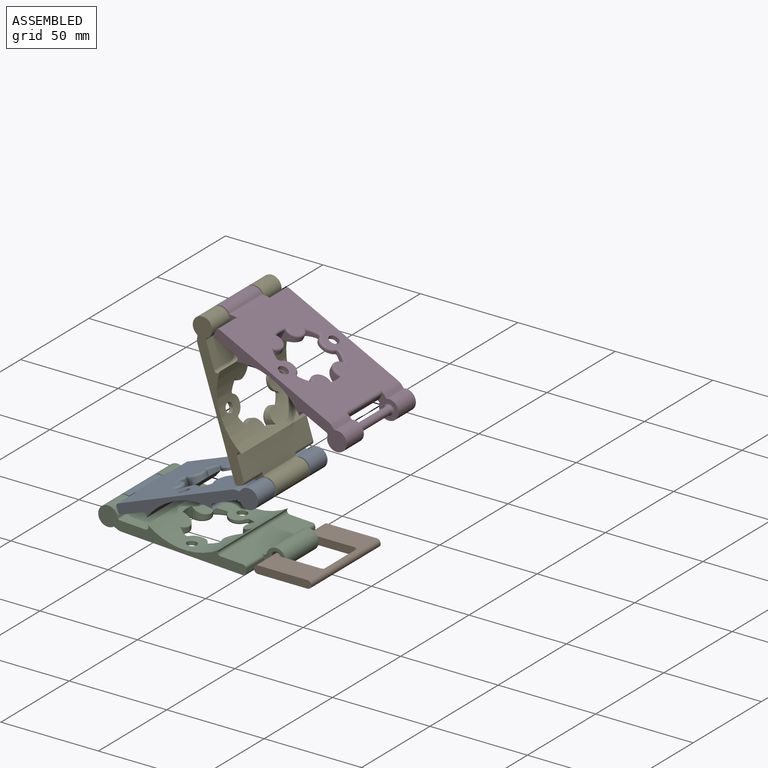
[diagram: assembled view]
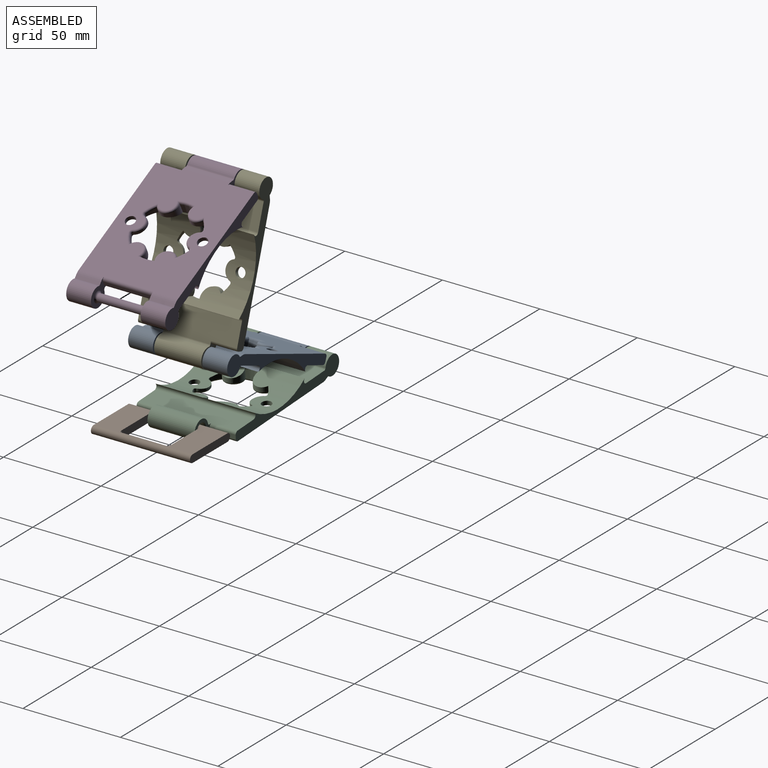
[diagram: assembled view, second angle]
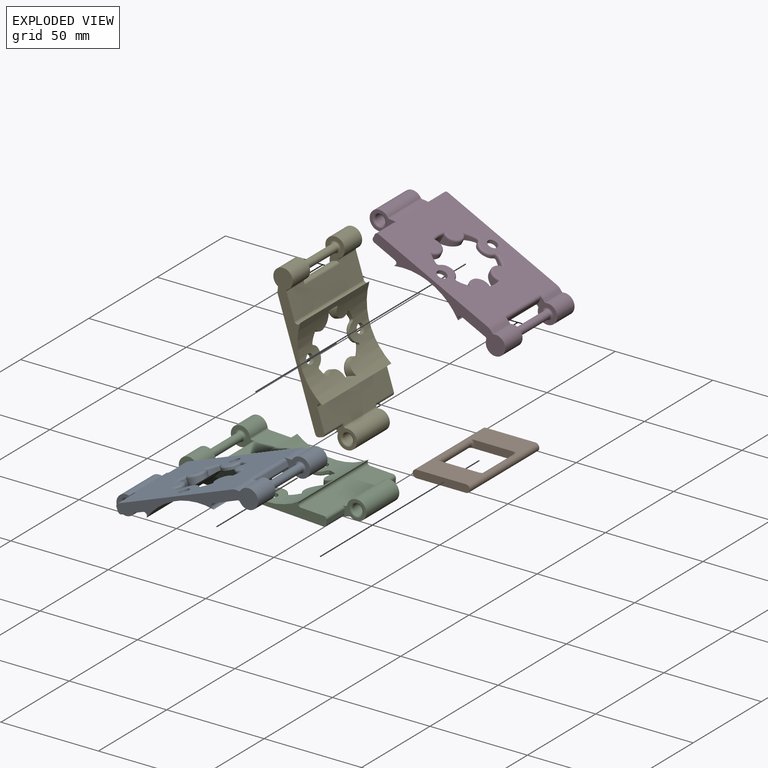
[diagram: exploded view]
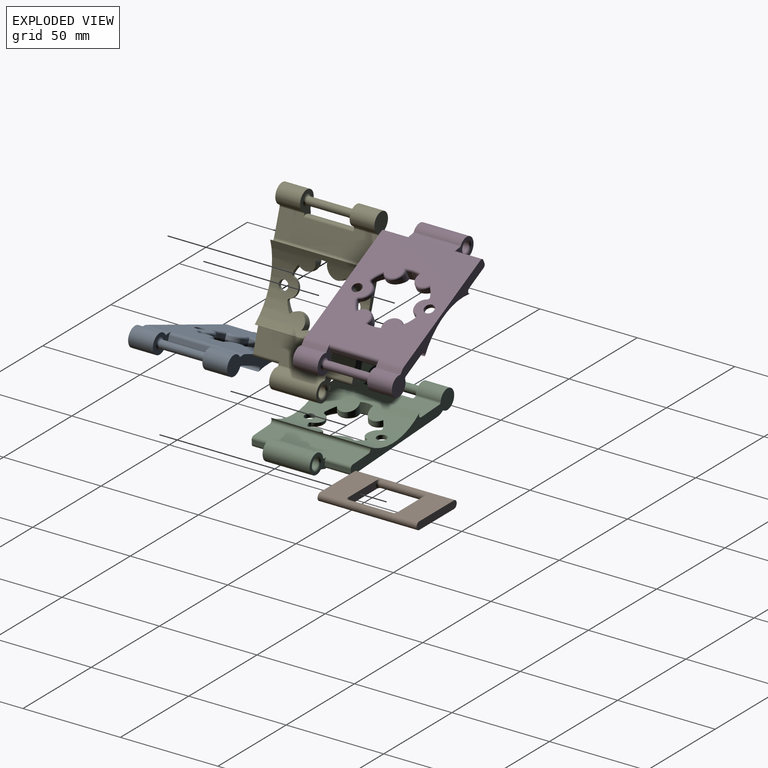
[diagram: exploded view, second angle]
ASSEMBLY  parts=5 mates=4
PART A: 74 faces, bbox 87x50.8x10 mm
  f0: cylinder r=32.5mm len=50.8mm, axis (0,-1,0), area 1361.5mm2, adj f8,f9,f24,f25,f29,f30,f31,f32
  f1: plane 63.73x50.8mm, normal (0,0,-1), area 2446.5mm2, adj f8,f9,f12,f13,f19,f20,f21,f22
  f2: plane 13.34x2mm, normal (1,0,0), area 26.7mm2, adj f9,f20,f21,f27
  f3: plane 50.8x13.3mm, normal (0,0,1), area 635.2mm2, adj f8,f9,f12,f13,f23,f24,f48,f49
  f4: cylinder r=5mm len=12.7mm, axis (0,1,0), area 334mm2, adj f5,f9,f12,f48
  f5: plane 12.7x1.73mm, normal (-0.41,0,-0.91), area 24.1mm2, adj f4,f9,f12,f66
  f6: plane 13.34x2mm, normal (1,0,0), area 26.7mm2, adj f8,f19,f26,f28
  f7: plane 50.8x13.3mm, normal (0,0,1), area 633.2mm2, adj f8,f9,f19,f20,f25,f27,f28,f45
  f8: plane 76x10mm, normal (0,-1,0), area 365.2mm2, adj f0,f1,f3,f6,f7,f10,f11,f24
  f9: plane 76x10mm, normal (0,1,0), area 365.2mm2, adj f0,f1,f2,f3,f4,f5,f7,f21
  f10: cylinder r=5mm len=12.7mm, axis (0,1,0), area 334mm2, adj f8,f11,f13,f49
  f11: plane 12.7x1.73mm, normal (-0.41,0,-0.91), area 24.1mm2, adj f8,f10,f13,f67
  f12: plane 12.5x10mm, normal (0,-1,0), area 58.7mm2, adj f1,f3,f4,f5,f14,f22,f23,f48
  f13: plane 12.5x10mm, normal (0,1,0), area 58.7mm2, adj f1,f3,f10,f11,f14,f22,f23,f49
  f14: plane 25.4x2mm, normal (-1,0,0), area 50.8mm2, adj f12,f13,f22,f23
  f15: cylinder r=2mm len=23.4mm, axis (0,-1,0), area 294.1mm2, adj f72,f73
  f16: plane 24.13x2.24mm, normal (0.35,0,-0.94), area 57.6mm2, adj f19,f20,f46,f47
  f17: cylinder r=5mm len=24.13mm, axis (0,1,0), area 617.4mm2, adj f19,f20,f45,f47
  f18: cylinder r=2.6mm len=22.13mm, axis (0,1,0), area 361.5mm2, adj f70,f71
  f19: plane 12.5x10mm, normal (0,-1,0), area 46.7mm2, adj f1,f6,f7,f16,f17,f26,f28,f45
  f20: plane 12.5x10mm, normal (0,1,0), area 46.7mm2, adj f1,f2,f7,f16,f17,f21,f27,f45
  f21: cylinder r=1.5mm len=13.34mm, axis (0,-1,0), area 31.4mm2, adj f1,f2,f9,f20
  f22: cylinder r=1.5mm len=25.4mm, axis (0,1,0), area 59.8mm2, adj f1,f12,f13,f14
  f23: cylinder r=1.5mm len=25.4mm, axis (0,-1,0), area 59.8mm2, adj f3,f12,f13,f14
  f24: cylinder r=1.5mm len=50.8mm, axis (0,1,0), area 193.4mm2, adj f0,f3,f8,f9
  f25: cylinder r=1.5mm len=50.8mm, axis (0,1,0), area 193.4mm2, adj f0,f7,f8,f9
  f26: cylinder r=1.5mm len=13.34mm, axis (0,-1,0), area 31.4mm2, adj f1,f6,f8,f19
  f27: cylinder r=1.5mm len=13.34mm, axis (0,1,0), area 31.4mm2, adj f2,f7,f9,f20
  f28: cylinder r=1.5mm len=13.34mm, axis (0,1,0), area 31.4mm2, adj f6,f7,f8,f19
  f29: cylinder r=5mm len=9.44mm, axis (0,0,-1), area 14.1mm2, adj f0,f41,f44,f51
  f30: cylinder r=16mm len=4.66mm, axis (0,0,-1), area 11.9mm2, adj f0,f31,f41,f52
  f31: cylinder r=5mm len=8.96mm, axis (0,0,-1), area 41.9mm2, adj f0,f30,f32,f54
  f32: cylinder r=16mm len=6.63mm, axis (0,0,-1), area 34.4mm2, adj f0,f31,f33,f56
  f33: cylinder r=5mm len=8.96mm, axis (0,0,-1), area 41.9mm2, adj f0,f32,f34,f58
  f34: cylinder r=16mm len=4.66mm, axis (0,0,-1), area 11.9mm2, adj f0,f33,f42,f60
  f35: cylinder r=5mm len=9.44mm, axis (0,0,-1), area 14.1mm2, adj f0,f42,f43,f64
  f36: cylinder r=16mm len=4.66mm, axis (0,0,-1), area 11.9mm2, adj f0,f37,f43,f63
  f37: cylinder r=5mm len=8.96mm, axis (0,0,-1), area 41.9mm2, adj f0,f36,f38,f61
  f38: cylinder r=16mm len=6.63mm, axis (0,0,-1), area 34.4mm2, adj f0,f37,f39,f59
  f39: cylinder r=5mm len=8.96mm, axis (0,0,-1), area 41.9mm2, adj f0,f38,f40,f57
  f40: cylinder r=16mm len=4.66mm, axis (0,0,-1), area 11.9mm2, adj f0,f39,f44,f55
  f41: cylinder r=1mm len=1.57mm, axis (0,0,-1), area 2.4mm2, adj f0,f29,f30,f50
  f42: cylinder r=1mm len=1.57mm, axis (0,0,-1), area 2.4mm2, adj f0,f34,f35,f62
  f43: cylinder r=1mm len=1.57mm, axis (0,0,-1), area 2.4mm2, adj f0,f35,f36,f65
  f44: cylinder r=1mm len=1.57mm, axis (0,0,-1), area 2.4mm2, adj f0,f29,f40,f53
  f45: cylinder r=1mm len=24.13mm, axis (0,1,0), area 33.9mm2, adj f7,f17,f19,f20
  f46: cylinder r=1mm len=24.13mm, axis (0,-1,0), area 8.6mm2, adj f1,f16,f19,f20
  f47: cylinder r=1mm len=24.13mm, axis (0,1,0), area 22.4mm2, adj f16,f17,f19,f20
  f48: cylinder r=1mm len=12.7mm, axis (0,1,0), area 17.8mm2, adj f3,f4,f9,f12
  f49: cylinder r=1mm len=12.7mm, axis (0,1,0), area 17.8mm2, adj f3,f8,f10,f13
  f50: torus R=2mm, axis (0,0,1), area 3.5mm2, adj f1,f41,f51,f52
  f51: torus R=4mm, axis (0,0,1), area 18mm2, adj f1,f29,f50,f53
  f52: torus R=17mm, axis (0,0,1), area 9.6mm2, adj f1,f30,f50,f54
  f53: torus R=2mm, axis (0,0,1), area 3.5mm2, adj f1,f44,f51,f55
  f54: torus R=4mm, axis (0,0,1), area 22.3mm2, adj f1,f31,f52,f56
  f55: torus R=17mm, axis (0,0,1), area 9.6mm2, adj f1,f40,f53,f57
  f56: torus R=17mm, axis (0,0,1), area 12.2mm2, adj f1,f32,f54,f58
  f57: torus R=4mm, axis (0,0,1), area 22.3mm2, adj f1,f39,f55,f59
  f58: torus R=4mm, axis (0,0,1), area 22.3mm2, adj f1,f33,f56,f60
  f59: torus R=17mm, axis (0,0,1), area 12.2mm2, adj f1,f38,f57,f61
  f60: torus R=17mm, axis (0,0,1), area 9.6mm2, adj f1,f34,f58,f62
  f61: torus R=4mm, axis (0,0,1), area 22.3mm2, adj f1,f37,f59,f63
  f62: torus R=2mm, axis (0,0,1), area 3.5mm2, adj f1,f42,f60,f64
  f63: torus R=17mm, axis (0,0,1), area 9.6mm2, adj f1,f36,f61,f65
  f64: torus R=4mm, axis (0,0,1), area 18mm2, adj f1,f35,f62,f65
  f65: torus R=2mm, axis (0,0,1), area 3.5mm2, adj f1,f43,f63,f64
  f66: cylinder r=5.08mm len=12.7mm, axis (0,1,0), area 27.3mm2, adj f1,f5,f9,f12
  f67: cylinder r=5.08mm len=12.7mm, axis (0,1,0), area 27.3mm2, adj f1,f8,f11,f13
  f68: cylinder r=2.5mm len=5mm, axis (0,0,-1), area 32.2mm2, adj f0,f1
  f69: cylinder r=2.5mm len=5mm, axis (0,0,-1), area 32.2mm2, adj f0,f1
  f70: torus R=3.6mm, axis (0,-1,0), area 29.2mm2, adj f18,f20
  f71: torus R=3.6mm, axis (0,-1,0), area 29.2mm2, adj f18,f19
  f72: torus R=3mm, axis (0,-1,0), area 23.3mm2, adj f13,f15
  f73: torus R=3mm, axis (0,-1,0), area 23.3mm2, adj f12,f15
PART B: 16 faces, bbox 29.4x50.8x8 mm
  f0: plane 13.7x0mm, normal (1,0,0), area 0mm2, adj f1,f3,f9,f14
  f1: plane 25.36x13.7mm, normal (0,0,1), area 323.7mm2, adj f0,f6,f9,f10,f14,f15
  f2: plane 25.36x13.7mm, normal (0,0,-1), area 323.7mm2, adj f3,f6,f9,f10,f14,f15
  f3: cylinder r=2mm len=50.8mm, axis (0,1,0), area 468.2mm2, adj f0,f2,f4,f7,f8,f9,f12,f14
  f4: plane 13.7x0mm, normal (1,0,0), area 0mm2, adj f3,f5,f8,f12
  f5: plane 25.36x13.7mm, normal (0,0,1), area 323.7mm2, adj f4,f6,f8,f11,f12,f13
  f6: cylinder r=2mm len=50.8mm, axis (0,1,0), area 466.2mm2, adj f1,f2,f5,f7,f8,f9,f13,f15
  f7: plane 25.36x13.7mm, normal (0,0,-1), area 323.7mm2, adj f3,f6,f8,f11,f12,f13
  f8: plane 29.4x4mm, normal (0,-1,0), area 114.2mm2, adj f3,f4,f5,f6,f7
  f9: plane 29.4x4mm, normal (0,1,0), area 114.2mm2, adj f0,f1,f2,f3,f6
  f10: plane 20.93x4mm, normal (0,-1,0), area 79.5mm2, adj f1,f2,f14,f15
  f11: plane 20.93x4mm, normal (0,1,0), area 79.5mm2, adj f5,f7,f12,f13
  f12: torus R=3mm, axis (0,-1,0), area 7.9mm2, adj f3,f4,f5,f7,f11
  f13: torus R=3mm, axis (0,-1,0), area 7.9mm2, adj f5,f6,f7,f11
  f14: torus R=3mm, axis (0,-1,0), area 7.9mm2, adj f0,f1,f2,f3,f10
  f15: torus R=3mm, axis (0,-1,0), area 7.9mm2, adj f1,f2,f6,f10
PART C: same geometry as A
PART D: same geometry as A
PART E: same geometry as A
PLACE A rot(axis=(0,1,0),159.3deg) t=(20.86,40.33,-52.47)mm
PLACE B t=(115.2,40.33,-13.25)mm fixed
PLACE C rot(axis=(0,1,0),3.2deg) t=(14.49,40.33,-11.16)mm
PLACE D rot(axis=(0,-1,0),153.4deg) t=(44.17,40.33,18.45)mm
PLACE E rot(axis=(0,1,0),72.2deg) t=(62.77,40.33,34.4)mm
MATE revolute A.f17 <-> C.f4  axis (0,1,0) through (-25.58,40.33,-38.48)mm
MATE revolute E.f17 <-> A.f4  axis (0,1,0) through (46.45,40.33,-11.27)mm
MATE revolute C.f17 <-> B.f6  axis (0,1,0) through (51.3,40.33,-42.75)mm
MATE revolute D.f17 <-> E.f4  axis (0,1,0) through (22.91,40.33,62.04)mm
